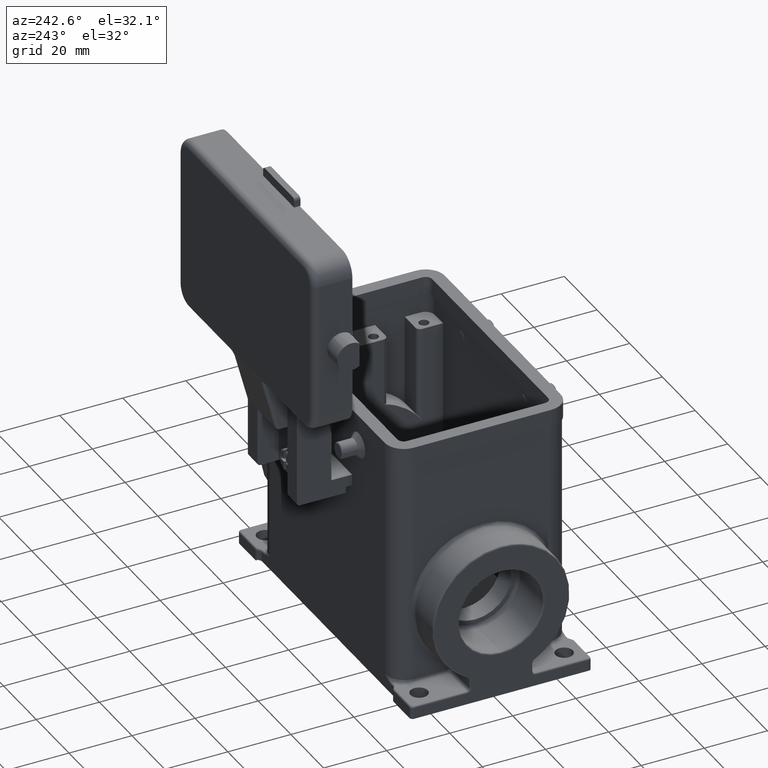
[diagram: clean part render]
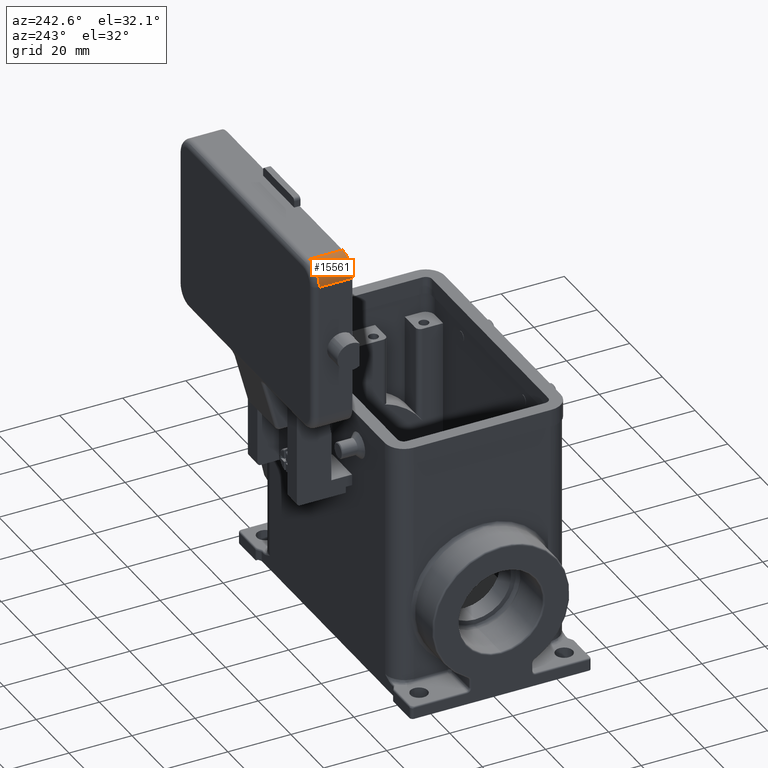
[diagram: same view with one face highlighted and labeled with its STEP entity id]
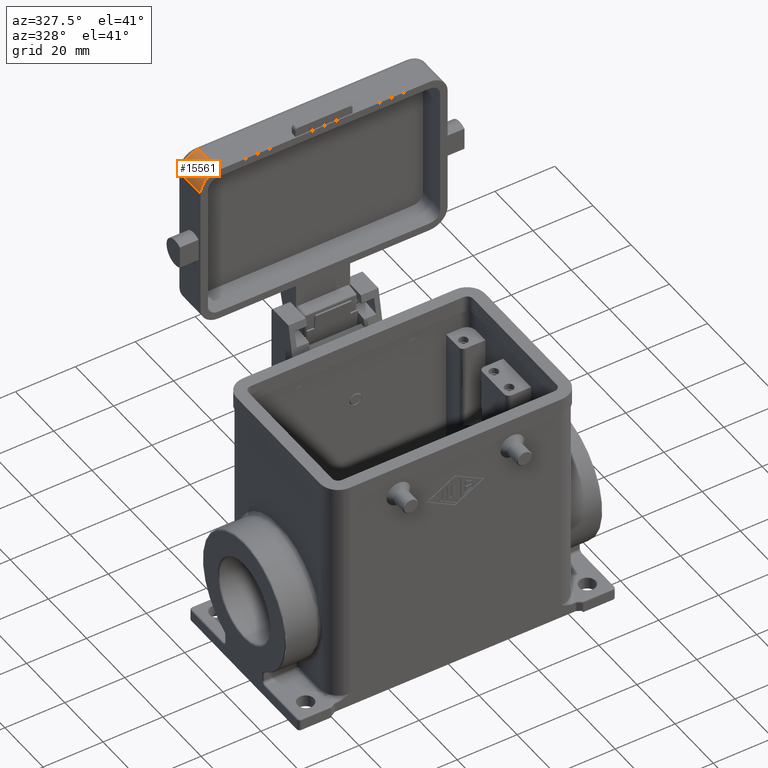
[diagram: same view with one face highlighted and labeled with its STEP entity id]
A machine part, auxiliary view. The second image highlights one B-rep face of the part: STEP entity #15561.
A second angle (auxiliary view) of the same face is appended — the face is thin or edge-on in the first view.
In plain terms, the highlighted cylindrical surface (edge-blend (fillet) strip) has radius 6 mm, axis along (0, 1, 0).
Its self-contained STEP definition (entity closure, byte-faithful):
#15058=CARTESIAN_POINT('',(-35.250000000000000,51.650000000000006,97.299999999999983));
#15059=VERTEX_POINT('',#15058);
#15117=CARTESIAN_POINT('',(-41.250000000000000,51.650000000000006,91.299999999999983));
#15118=VERTEX_POINT('',#15117);
#15126=CARTESIAN_POINT('',(-35.250000000000000,51.650000000000006,91.299999999999983));
#15127=DIRECTION('',(0.0,1.000000000000000,0.0));
#15128=DIRECTION('',(-0.707106781186547,0.0,0.707106781186548));
#15129=AXIS2_PLACEMENT_3D('',#15126,#15127,#15128);
#15130=CIRCLE('',#15129,6.000000000000005);
#15131=EDGE_CURVE('',#15118,#15059,#15130,.T.);
#15519=CARTESIAN_POINT('',(-35.250000000000000,41.150000000000006,97.299999999999983));
#15520=VERTEX_POINT('',#15519);
#15521=CARTESIAN_POINT('',(-35.250000000000000,41.150000000000006,97.299999999999983));
#15522=DIRECTION('',(0.0,1.0,0.0));
#15523=VECTOR('',#15522,10.500000000000000);
#15524=LINE('',#15521,#15523);
#15525=EDGE_CURVE('',#15520,#15059,#15524,.T.);
#15537=CARTESIAN_POINT('',(-35.250000000000000,41.150000000000006,91.299999999999983));
#15538=DIRECTION('',(0.0,1.0,0.0));
#15539=DIRECTION('',(1.0,0.0,0.0));
#15540=AXIS2_PLACEMENT_3D('',#15537,#15538,#15539);
#15541=CYLINDRICAL_SURFACE('',#15540,6.000000000000005);
#15542=ORIENTED_EDGE('',*,*,#15131,.F.);
#15543=CARTESIAN_POINT('',(-41.250000000000000,41.150000000000006,91.299999999999983));
#15544=VERTEX_POINT('',#15543);
#15545=CARTESIAN_POINT('',(-41.250000000000000,41.150000000000006,91.299999999999983));
#15546=DIRECTION('',(0.0,1.0,0.0));
#15547=VECTOR('',#15546,10.500000000000000);
#15548=LINE('',#15545,#15547);
#15549=EDGE_CURVE('',#15544,#15118,#15548,.T.);
#15550=ORIENTED_EDGE('',*,*,#15549,.F.);
#15551=CARTESIAN_POINT('',(-35.250000000000000,41.150000000000006,91.299999999999983));
#15552=DIRECTION('',(0.0,-1.0,0.0));
#15553=DIRECTION('',(1.0,0.0,0.0));
#15554=AXIS2_PLACEMENT_3D('',#15551,#15552,#15553);
#15555=CIRCLE('',#15554,6.000000000000005);
#15556=EDGE_CURVE('',#15520,#15544,#15555,.T.);
#15557=ORIENTED_EDGE('',*,*,#15556,.F.);
#15558=ORIENTED_EDGE('',*,*,#15525,.T.);
#15559=EDGE_LOOP('',(#15542,#15550,#15557,#15558));
#15560=FACE_OUTER_BOUND('',#15559,.T.);
#15561=ADVANCED_FACE('',(#15560),#15541,.T.);